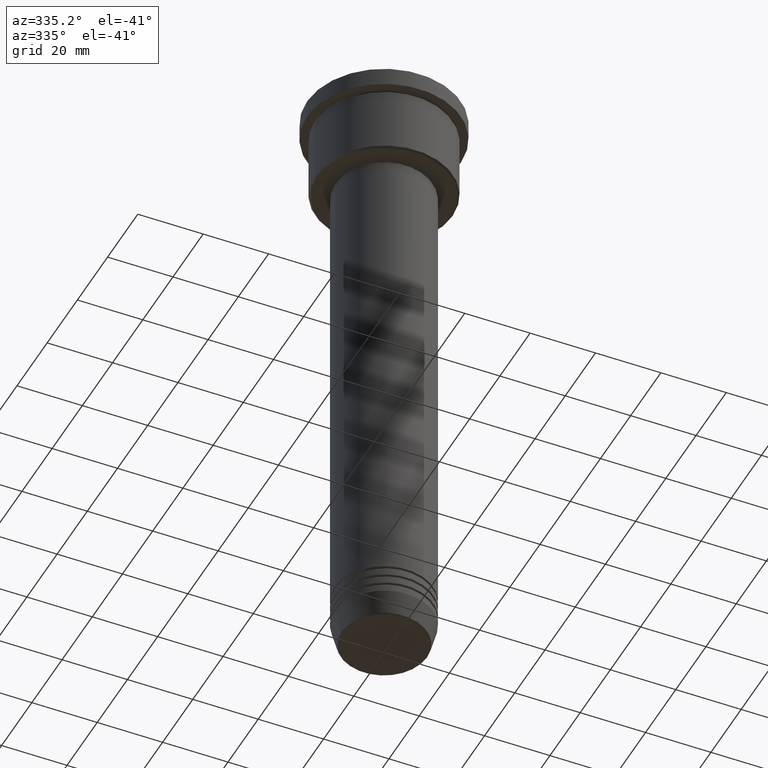
[diagram: clean part render]
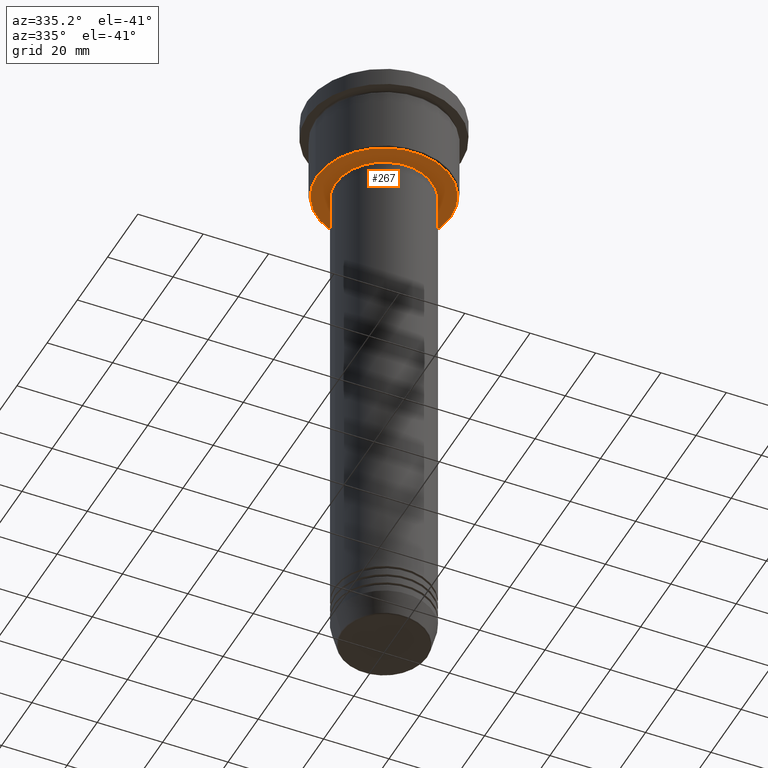
[diagram: same view with one face highlighted and labeled with its STEP entity id]
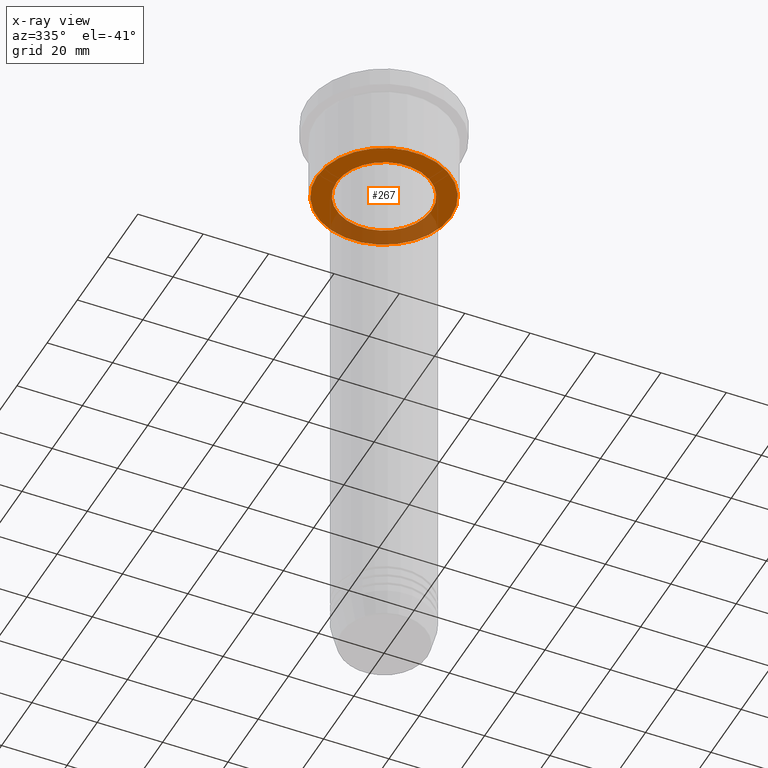
[diagram: x-ray of the same camera — body ghosted, the highlighted face saturated]
A machine part, auxiliary view. The second image highlights one B-rep face of the part: STEP entity #267.
The next image is the same camera in x-ray: the body ghosted, the highlighted face saturated — about 30% of this face is hidden behind the body in this view.
In plain terms, the highlighted planar face has unit normal (0, 0, -1).
Its self-contained STEP definition (entity closure, byte-faithful):
#9 = CARTESIAN_POINT ( 'NONE',  ( -20.50000000000000355, 2.541142108230758269E-15, -27.00000000000000000 ) ) ;
#10 = AXIS2_PLACEMENT_3D ( 'NONE', #44, #1129, #765 ) ;
#44 = CARTESIAN_POINT ( 'NONE',  ( 0.000000000000000000, 0.000000000000000000, -27.00000000000000000 ) ) ;
#57 = AXIS2_PLACEMENT_3D ( 'NONE', #169, #349, #982 ) ;
#58 = EDGE_LOOP ( 'NONE', ( #758, #514 ) ) ;
#97 = DIRECTION ( 'NONE',  ( -1.000000000000000000, 0.000000000000000000, -0.000000000000000000 ) ) ;
#130 = CIRCLE ( 'NONE', #795, 20.50000000000000355 ) ;
#169 = CARTESIAN_POINT ( 'NONE',  ( 0.000000000000000000, 0.000000000000000000, -27.00000000000000000 ) ) ;
#178 = FACE_OUTER_BOUND ( 'NONE', #1148, .T. ) ;
#189 = CIRCLE ( 'NONE', #1013, 14.49999999999999822 ) ;
#209 = CARTESIAN_POINT ( 'NONE',  ( 0.000000000000000000, 0.000000000000000000, -27.00000000000000000 ) ) ;
#234 = AXIS2_PLACEMENT_3D ( 'NONE', #534, #260, #97 ) ;
#260 = DIRECTION ( 'NONE',  ( 0.000000000000000000, 0.000000000000000000, -1.000000000000000000 ) ) ;
#267 = ADVANCED_FACE ( 'NONE', ( #178, #640 ), #915, .T. ) ;
#291 = EDGE_CURVE ( 'NONE', #1042, #591, #629, .T. ) ;
#310 = CARTESIAN_POINT ( 'NONE',  ( 0.000000000000000000, 0.000000000000000000, -27.00000000000000000 ) ) ;
#321 = CARTESIAN_POINT ( 'NONE',  ( 14.49999999999999822, 0.000000000000000000, -27.00000000000000000 ) ) ;
#349 = DIRECTION ( 'NONE',  ( -0.000000000000000000, -0.000000000000000000, 1.000000000000000000 ) ) ;
#385 = CIRCLE ( 'NONE', #10, 20.50000000000000355 ) ;
#443 = VERTEX_POINT ( 'NONE', #9 ) ;
#483 = CARTESIAN_POINT ( 'NONE',  ( -14.49999999999999822, 1.775737858763662015E-15, -27.00000000000000000 ) ) ;
#514 = ORIENTED_EDGE ( 'NONE', *, *, #291, .T. ) ;
#532 = EDGE_CURVE ( 'NONE', #443, #793, #130, .T. ) ;
#534 = CARTESIAN_POINT ( 'NONE',  ( 0.000000000000000000, 21.00000000000000000, -27.00000000000000000 ) ) ;
#571 = DIRECTION ( 'NONE',  ( -1.000000000000000000, 0.000000000000000000, 0.000000000000000000 ) ) ;
#591 = VERTEX_POINT ( 'NONE', #321 ) ;
#629 = CIRCLE ( 'NONE', #57, 14.49999999999999822 ) ;
#640 = FACE_BOUND ( 'NONE', #58, .T. ) ;
#758 = ORIENTED_EDGE ( 'NONE', *, *, #1016, .T. ) ;
#765 = DIRECTION ( 'NONE',  ( -1.000000000000000000, 0.000000000000000000, 0.000000000000000000 ) ) ;
#786 = ORIENTED_EDGE ( 'NONE', *, *, #532, .T. ) ;
#789 = CARTESIAN_POINT ( 'NONE',  ( 20.50000000000000355, 0.000000000000000000, -27.00000000000000000 ) ) ;
#793 = VERTEX_POINT ( 'NONE', #789 ) ;
#795 = AXIS2_PLACEMENT_3D ( 'NONE', #209, #919, #571 ) ;
#832 = ORIENTED_EDGE ( 'NONE', *, *, #1125, .T. ) ;
#845 = DIRECTION ( 'NONE',  ( -0.000000000000000000, -0.000000000000000000, 1.000000000000000000 ) ) ;
#915 = PLANE ( 'NONE',  #234 ) ;
#919 = DIRECTION ( 'NONE',  ( 0.000000000000000000, 0.000000000000000000, -1.000000000000000000 ) ) ;
#982 = DIRECTION ( 'NONE',  ( 1.000000000000000000, 0.000000000000000000, 0.000000000000000000 ) ) ;
#1013 = AXIS2_PLACEMENT_3D ( 'NONE', #310, #845, #1111 ) ;
#1016 = EDGE_CURVE ( 'NONE', #591, #1042, #189, .T. ) ;
#1042 = VERTEX_POINT ( 'NONE', #483 ) ;
#1111 = DIRECTION ( 'NONE',  ( 1.000000000000000000, 0.000000000000000000, 0.000000000000000000 ) ) ;
#1125 = EDGE_CURVE ( 'NONE', #793, #443, #385, .T. ) ;
#1129 = DIRECTION ( 'NONE',  ( 0.000000000000000000, 0.000000000000000000, -1.000000000000000000 ) ) ;
#1148 = EDGE_LOOP ( 'NONE', ( #832, #786 ) ) ;